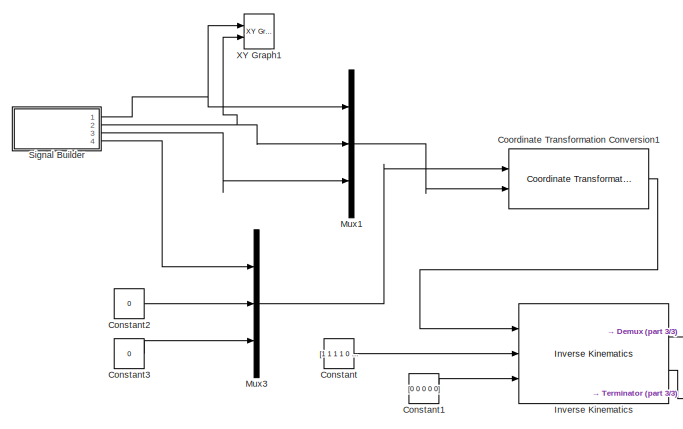
[diagram: root canvas - part 1/3, top left region]
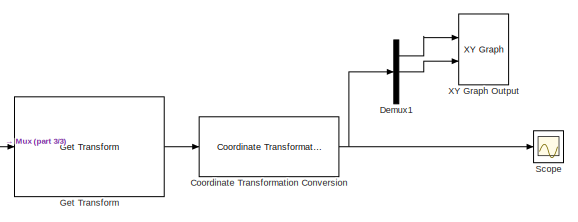
[diagram: root canvas - part 2/3, middle right region]
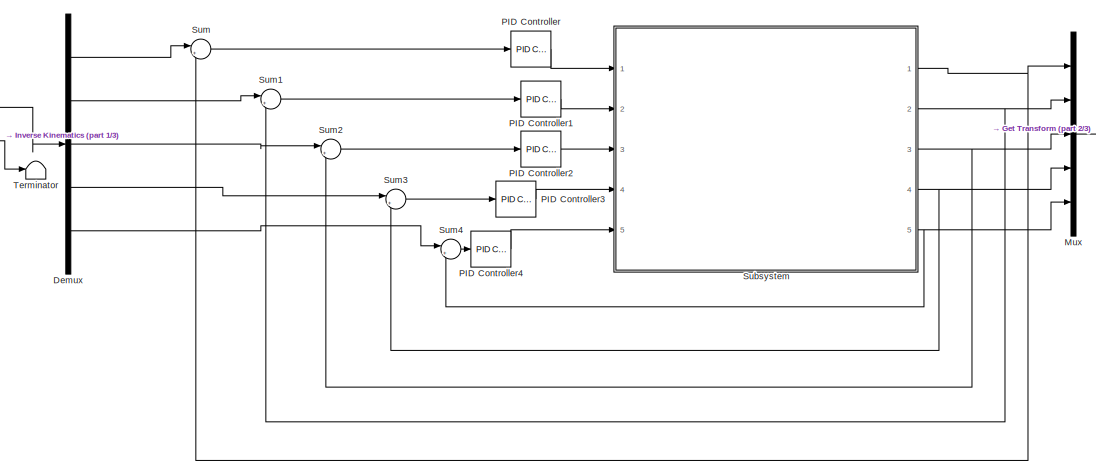
[diagram: root canvas - part 3/3, central region]
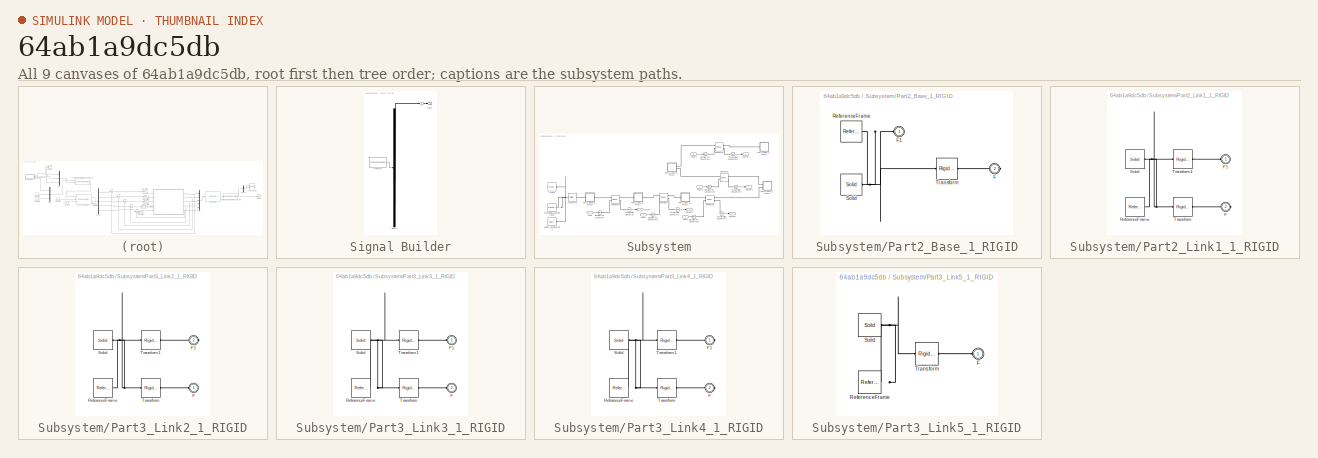
[diagram: thumbnail index - all 9 canvases of the model, root first then tree order]
MODEL slx_64ab1a9dc5db
KIND model
CONFIG AbsTol = auto
CONFIG EnableMultiTasking = off
CONFIG FixedStep = auto
CONFIG MaxStep = auto
CONFIG MinStep = auto
CONFIG RelTol = 1e-3
CONFIG SampleTimeConstraint = Unconstrained
CONFIG Solver = VariableStepAuto
CONFIG SolverName = VariableStepAuto
CONFIG StartTime = 0.0
CONFIG StopTime = 10.0
WORKSPACE source: external: MATLAB File  (data not in archive)
BLOCK [Constant] Constant
  Value = [1 1 1 1 0 0]
BLOCK [Constant] Constant1
  Value = [0 0 0 0 0]
BLOCK [Constant] Constant2
  Value = 0
BLOCK [Constant] Constant3
  Value = 0
BLOCK [Reference] Coordinate Transformation Conversion  REF=robotcorelib/Coordinate Transformation Conversion
  Ports = [1, 1]
  SourceBlock = robotcorelib/Coordinate Transformation Conversion
  SourceProductBaseCode = RO
  SourceProductName = Robotics System Toolbox
  SourceType = robotics.slcore.internal.block.CoordinateTransformationConversion
BLOCK [Reference] Coordinate Transformation Conversion1  REF=robotcorelib/Coordinate Transformation Conversion
  Ports = [2, 1]
  SourceBlock = robotcorelib/Coordinate Transformation Conversion
  SourceProductBaseCode = RO
  SourceProductName = Robotics System Toolbox
  SourceType = robotics.slcore.internal.block.CoordinateTransformationConversion
BLOCK [Demux] Demux
  DisplayOption = bar
  Outputs = 5
  Ports = [1, 5]
BLOCK [Demux] Demux1
  DisplayOption = bar
  Outputs = 3
  Ports = [1, 3]
BLOCK [Reference] Get Transform  REF=robotmaniplib/Get Transform
  Ports = [1, 1]
  SourceBlock = robotmaniplib/Get Transform
  SourceProductBaseCode = RO
  SourceProductName = Robotics System Toolbox
  SourceType = Get Transform
BLOCK [Reference] Inverse Kinematics  REF=robotmaniplib/Inverse Kinematics
  Ports = [3, 2]
  SourceBlock = robotmaniplib/Inverse Kinematics
  SourceProductBaseCode = RO
  SourceProductName = Robotics System Toolbox
  SourceType = Inverse Kinematics
BLOCK [Mux] Mux
  DisplayOption = bar
  Inputs = 5
  Ports = [5, 1]
BLOCK [Mux] Mux1
  DisplayOption = bar
  Inputs = 3
  Ports = [3, 1]
BLOCK [Mux] Mux3
  DisplayOption = bar
  Inputs = 3
  Ports = [3, 1]
BLOCK [Reference] PID Controller  REF=simulink/Continuous/PID Controller
  Ports = [1, 1]
  SourceBlock = simulink/Continuous/PID Controller
  SourceProductBaseCode = SL
  SourceProductName = Simulink
  SourceType = PID 1dof
BLOCK [Reference] PID Controller1  REF=simulink/Continuous/PID Controller
  Ports = [1, 1]
  SourceBlock = simulink/Continuous/PID Controller
  SourceProductBaseCode = SL
  SourceProductName = Simulink
  SourceType = PID 1dof
BLOCK [Reference] PID Controller2  REF=simulink/Continuous/PID Controller
  Ports = [1, 1]
  SourceBlock = simulink/Continuous/PID Controller
  SourceProductBaseCode = SL
  SourceProductName = Simulink
  SourceType = PID 1dof
BLOCK [Reference] PID Controller3  REF=simulink/Continuous/PID Controller
  Ports = [1, 1]
  SourceBlock = simulink/Continuous/PID Controller
  SourceProductBaseCode = SL
  SourceProductName = Simulink
  SourceType = PID 1dof
BLOCK [Reference] PID Controller4  REF=simulink/Continuous/PID Controller
  Ports = [1, 1]
  SourceBlock = simulink/Continuous/PID Controller
  SourceProductBaseCode = SL
  SourceProductName = Simulink
  SourceType = PID 1dof
BLOCK [Scope] Scope
  Floating = off
  NumInputPorts = 1
  Ports = [1]
  ScopeSpecificationString = Simulink.scopes.TimeScopeBlockCfg('CurrentConfiguration', extmgr.ConfigurationSet(extmgr.Configuration('Core','General UI',true),extmgr.Configuration('Core','Source UI',true),extmgr.Configuration('Sources','WiredSimulink',true),extmgr.Configuration('Visuals','Time Domain',true,'SerializedDisplays',{struct('MinYLimReal','-1.26989','MaxYLimReal','1.23812','YLabelReal','','MinYLimMag','0.00000','MaxY...<+1469ch>
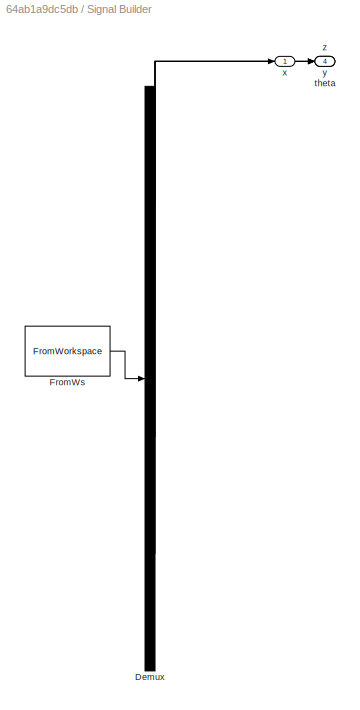
BLOCK [SubSystem] Signal Builder
  ClipboardFcn = sigbuilder_block('clipboard');
  CloseFcn = sigbuilder_block('close');
  ContinueFcn = sigbuilder_block('continue');
  CopyFcn = sigbuilder_block('copy');
  DeleteFcn = sigbuilder_block('delete');
  LoadFcn = sigbuilder_block('load');
  MaskHideContents = on
  ModelCloseFcn = sigbuilder_block('modelClose');
  NameChangeFcn = sigbuilder_block('namechange');
  OpenFcn = sigbuilder_block('open',[6 20.25 1012.5 447.75 ]);
  PauseFcn = sigbuilder_block('pause');
  Ports = [0, 4]
  PreSaveFcn = sigbuilder_block('preSave');
  RequestExecContextInheritance = off
  StartFcn = sigbuilder_block('start');
  StopFcn = sigbuilder_block('stop');
  Tag = STV Subsys
BLOCK [Demux] Signal Builder/Demux
  Ports = [1, 4]
  Tag = STV Demux
BLOCK [FromWorkspace] Signal Builder/FromWs
  SampleTime = 0
  Tag = STV FromWs
  VariableName = tuvar
  ZeroCross = on
BLOCK [Outport] Signal Builder/theta
  IconDisplay = Port number
  Port = 4
  Tag = STV Outport
BLOCK [Outport] Signal Builder/x
  IconDisplay = Port number
  Tag = STV Outport
BLOCK [Outport] Signal Builder/y
  IconDisplay = Port number
  Port = 2
  Tag = STV Outport
BLOCK [Outport] Signal Builder/z
  IconDisplay = Port number
  Port = 3
  Tag = STV Outport
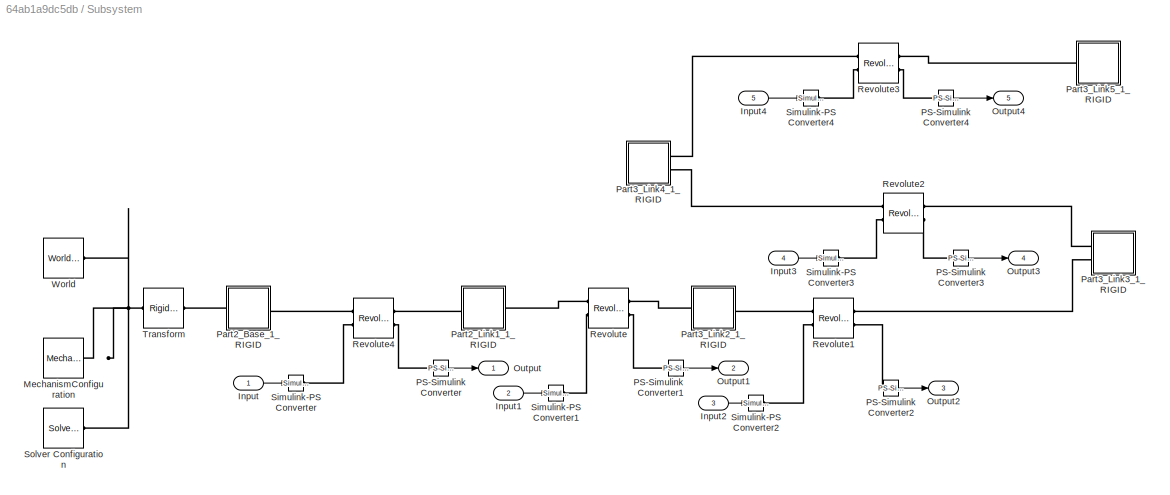
BLOCK [SubSystem] Subsystem
  Ports = [5, 5]
  RequestExecContextInheritance = off
BLOCK [Inport] Subsystem/Input
  IconDisplay = Port number
BLOCK [Inport] Subsystem/Input1
  IconDisplay = Port number
  Port = 2
BLOCK [Inport] Subsystem/Input2
  IconDisplay = Port number
  Port = 3
BLOCK [Inport] Subsystem/Input3
  IconDisplay = Port number
  Port = 4
BLOCK [Inport] Subsystem/Input4
  IconDisplay = Port number
  Port = 5
BLOCK [Reference] Subsystem/MechanismConfiguration  REF=sm_lib/Utilities/Mechanism
Configuration
  Ports = [0, 0, 0, 0, 0, 0, 1]
  SourceBlock = sm_lib/Utilities/Mechanism\nConfiguration
  SourceProductBaseCode = MS
  SourceProductName = Simscape Multibody
  SourceType = Mechanism\nConfiguration
BLOCK [Outport] Subsystem/Output
  IconDisplay = Port number
BLOCK [Outport] Subsystem/Output1
  IconDisplay = Port number
  Port = 2
BLOCK [Outport] Subsystem/Output2
  IconDisplay = Port number
  Port = 3
BLOCK [Outport] Subsystem/Output3
  IconDisplay = Port number
  Port = 4
BLOCK [Outport] Subsystem/Output4
  IconDisplay = Port number
  Port = 5
BLOCK [Reference] Subsystem/PS-Simulink Converter  REF=nesl_utility/PS-Simulink
Converter
  Ports = [0, 1, 0, 0, 0, 1]
  SourceBlock = nesl_utility/PS-Simulink\nConverter
  SourceProductBaseCode = SS
  SourceProductName = Simscape
  SourceType = PS-Simulink\nConverter
BLOCK [Reference] Subsystem/PS-Simulink Converter1  REF=nesl_utility/PS-Simulink
Converter
  Ports = [0, 1, 0, 0, 0, 1]
  SourceBlock = nesl_utility/PS-Simulink\nConverter
  SourceProductBaseCode = SS
  SourceProductName = Simscape
  SourceType = PS-Simulink\nConverter
BLOCK [Reference] Subsystem/PS-Simulink Converter2  REF=nesl_utility/PS-Simulink
Converter
  Ports = [0, 1, 0, 0, 0, 1]
  SourceBlock = nesl_utility/PS-Simulink\nConverter
  SourceProductBaseCode = SS
  SourceProductName = Simscape
  SourceType = PS-Simulink\nConverter
BLOCK [Reference] Subsystem/PS-Simulink Converter3  REF=nesl_utility/PS-Simulink
Converter
  Ports = [0, 1, 0, 0, 0, 1]
  SourceBlock = nesl_utility/PS-Simulink\nConverter
  SourceProductBaseCode = SS
  SourceProductName = Simscape
  SourceType = PS-Simulink\nConverter
BLOCK [Reference] Subsystem/PS-Simulink Converter4  REF=nesl_utility/PS-Simulink
Converter
  Ports = [0, 1, 0, 0, 0, 1]
  SourceBlock = nesl_utility/PS-Simulink\nConverter
  SourceProductBaseCode = SS
  SourceProductName = Simscape
  SourceType = PS-Simulink\nConverter
BLOCK [SubSystem] Subsystem/Part2_Base_1_RIGID
  Ports = [0, 0, 0, 0, 0, 1, 1]
  RequestExecContextInheritance = off
BLOCK [PMIOPort] Subsystem/Part2_Base_1_RIGID/F
  Port = 2
  Side = Right
BLOCK [PMIOPort] Subsystem/Part2_Base_1_RIGID/F1
  Side = Left
BLOCK [Reference] Subsystem/Part2_Base_1_RIGID/ReferenceFrame  REF=sm_lib/Frames and
Transforms/Reference
Frame
  Ports = [0, 0, 0, 0, 0, 0, 1]
  SourceBlock = sm_lib/Frames and\nTransforms/Reference\nFrame
  SourceProductBaseCode = MS
  SourceProductName = Simscape Multibody
  SourceType = Reference\nFrame
BLOCK [Reference] Subsystem/Part2_Base_1_RIGID/Solid  REF=sm_lib/Body Elements/Solid
  Ports = [0, 0, 0, 0, 0, 0, 1]
  SourceBlock = sm_lib/Body Elements/Solid
  SourceProductBaseCode = MS
  SourceProductName = Simscape Multibody
  SourceType = Solid
BLOCK [Reference] Subsystem/Part2_Base_1_RIGID/Transform  REF=sm_lib/Frames and
Transforms/Rigid
Transform
  Ports = [0, 0, 0, 0, 0, 1, 1]
  SourceBlock = sm_lib/Frames and\nTransforms/Rigid\nTransform
  SourceProductBaseCode = MS
  SourceProductName = Simscape Multibody
  SourceType = Rigid\nTransform
BLOCK [SubSystem] Subsystem/Part2_Link1_1_RIGID
  Ports = [0, 0, 0, 0, 0, 1, 1]
  RequestExecContextInheritance = off
BLOCK [PMIOPort] Subsystem/Part2_Link1_1_RIGID/F
  Port = 2
  Side = Right
BLOCK [PMIOPort] Subsystem/Part2_Link1_1_RIGID/F1
  Side = Left
BLOCK [Reference] Subsystem/Part2_Link1_1_RIGID/ReferenceFrame  REF=sm_lib/Frames and
Transforms/Reference
Frame
  Ports = [0, 0, 0, 0, 0, 0, 1]
  SourceBlock = sm_lib/Frames and\nTransforms/Reference\nFrame
  SourceProductBaseCode = MS
  SourceProductName = Simscape Multibody
  SourceType = Reference\nFrame
BLOCK [Reference] Subsystem/Part2_Link1_1_RIGID/Solid  REF=sm_lib/Body Elements/Solid
  Ports = [0, 0, 0, 0, 0, 0, 1]
  SourceBlock = sm_lib/Body Elements/Solid
  SourceProductBaseCode = MS
  SourceProductName = Simscape Multibody
  SourceType = Solid
BLOCK [Reference] Subsystem/Part2_Link1_1_RIGID/Transform  REF=sm_lib/Frames and
Transforms/Rigid
Transform
  Ports = [0, 0, 0, 0, 0, 1, 1]
  SourceBlock = sm_lib/Frames and\nTransforms/Rigid\nTransform
  SourceProductBaseCode = MS
  SourceProductName = Simscape Multibody
  SourceType = Rigid\nTransform
BLOCK [Reference] Subsystem/Part2_Link1_1_RIGID/Transform1  REF=sm_lib/Frames and
Transforms/Rigid
Transform
  Ports = [0, 0, 0, 0, 0, 1, 1]
  SourceBlock = sm_lib/Frames and\nTransforms/Rigid\nTransform
  SourceProductBaseCode = MS
  SourceProductName = Simscape Multibody
  SourceType = Rigid\nTransform
BLOCK [SubSystem] Subsystem/Part3_Link2_1_RIGID
  Ports = [0, 0, 0, 0, 0, 1, 1]
  RequestExecContextInheritance = off
BLOCK [PMIOPort] Subsystem/Part3_Link2_1_RIGID/F
  Side = Left
BLOCK [PMIOPort] Subsystem/Part3_Link2_1_RIGID/F1
  Port = 2
  Side = Right
BLOCK [Reference] Subsystem/Part3_Link2_1_RIGID/ReferenceFrame  REF=sm_lib/Frames and
Transforms/Reference
Frame
  Ports = [0, 0, 0, 0, 0, 0, 1]
  SourceBlock = sm_lib/Frames and\nTransforms/Reference\nFrame
  SourceProductBaseCode = MS
  SourceProductName = Simscape Multibody
  SourceType = Reference\nFrame
BLOCK [Reference] Subsystem/Part3_Link2_1_RIGID/Solid  REF=sm_lib/Body Elements/Solid
  Ports = [0, 0, 0, 0, 0, 0, 1]
  SourceBlock = sm_lib/Body Elements/Solid
  SourceProductBaseCode = MS
  SourceProductName = Simscape Multibody
  SourceType = Solid
BLOCK [Reference] Subsystem/Part3_Link2_1_RIGID/Transform  REF=sm_lib/Frames and
Transforms/Rigid
Transform
  Ports = [0, 0, 0, 0, 0, 1, 1]
  SourceBlock = sm_lib/Frames and\nTransforms/Rigid\nTransform
  SourceProductBaseCode = MS
  SourceProductName = Simscape Multibody
  SourceType = Rigid\nTransform
BLOCK [Reference] Subsystem/Part3_Link2_1_RIGID/Transform1  REF=sm_lib/Frames and
Transforms/Rigid
Transform
  Ports = [0, 0, 0, 0, 0, 1, 1]
  SourceBlock = sm_lib/Frames and\nTransforms/Rigid\nTransform
  SourceProductBaseCode = MS
  SourceProductName = Simscape Multibody
  SourceType = Rigid\nTransform
BLOCK [SubSystem] Subsystem/Part3_Link3_1_RIGID
  Ports = [0, 0, 0, 0, 0, 2]
  RequestExecContextInheritance = off
BLOCK [PMIOPort] Subsystem/Part3_Link3_1_RIGID/F
  Port = 2
  Side = Left
BLOCK [PMIOPort] Subsystem/Part3_Link3_1_RIGID/F1
  Side = Left
BLOCK [Reference] Subsystem/Part3_Link3_1_RIGID/ReferenceFrame  REF=sm_lib/Frames and
Transforms/Reference
Frame
  Ports = [0, 0, 0, 0, 0, 0, 1]
  SourceBlock = sm_lib/Frames and\nTransforms/Reference\nFrame
  SourceProductBaseCode = MS
  SourceProductName = Simscape Multibody
  SourceType = Reference\nFrame
BLOCK [Reference] Subsystem/Part3_Link3_1_RIGID/Solid  REF=sm_lib/Body Elements/Solid
  Ports = [0, 0, 0, 0, 0, 0, 1]
  SourceBlock = sm_lib/Body Elements/Solid
  SourceProductBaseCode = MS
  SourceProductName = Simscape Multibody
  SourceType = Solid
BLOCK [Reference] Subsystem/Part3_Link3_1_RIGID/Transform  REF=sm_lib/Frames and
Transforms/Rigid
Transform
  Ports = [0, 0, 0, 0, 0, 1, 1]
  SourceBlock = sm_lib/Frames and\nTransforms/Rigid\nTransform
  SourceProductBaseCode = MS
  SourceProductName = Simscape Multibody
  SourceType = Rigid\nTransform
BLOCK [Reference] Subsystem/Part3_Link3_1_RIGID/Transform1  REF=sm_lib/Frames and
Transforms/Rigid
Transform
  Ports = [0, 0, 0, 0, 0, 1, 1]
  SourceBlock = sm_lib/Frames and\nTransforms/Rigid\nTransform
  SourceProductBaseCode = MS
  SourceProductName = Simscape Multibody
  SourceType = Rigid\nTransform
BLOCK [SubSystem] Subsystem/Part3_Link4_1_RIGID
  Ports = [0, 0, 0, 0, 0, 0, 2]
  RequestExecContextInheritance = off
BLOCK [PMIOPort] Subsystem/Part3_Link4_1_RIGID/F
  Port = 2
  Side = Right
BLOCK [PMIOPort] Subsystem/Part3_Link4_1_RIGID/F1
  Side = Right
BLOCK [Reference] Subsystem/Part3_Link4_1_RIGID/ReferenceFrame  REF=sm_lib/Frames and
Transforms/Reference
Frame
  Ports = [0, 0, 0, 0, 0, 0, 1]
  SourceBlock = sm_lib/Frames and\nTransforms/Reference\nFrame
  SourceProductBaseCode = MS
  SourceProductName = Simscape Multibody
  SourceType = Reference\nFrame
BLOCK [Reference] Subsystem/Part3_Link4_1_RIGID/Solid  REF=sm_lib/Body Elements/Solid
  Ports = [0, 0, 0, 0, 0, 0, 1]
  SourceBlock = sm_lib/Body Elements/Solid
  SourceProductBaseCode = MS
  SourceProductName = Simscape Multibody
  SourceType = Solid
BLOCK [Reference] Subsystem/Part3_Link4_1_RIGID/Transform  REF=sm_lib/Frames and
Transforms/Rigid
Transform
  Ports = [0, 0, 0, 0, 0, 1, 1]
  SourceBlock = sm_lib/Frames and\nTransforms/Rigid\nTransform
  SourceProductBaseCode = MS
  SourceProductName = Simscape Multibody
  SourceType = Rigid\nTransform
BLOCK [Reference] Subsystem/Part3_Link4_1_RIGID/Transform1  REF=sm_lib/Frames and
Transforms/Rigid
Transform
  Ports = [0, 0, 0, 0, 0, 1, 1]
  SourceBlock = sm_lib/Frames and\nTransforms/Rigid\nTransform
  SourceProductBaseCode = MS
  SourceProductName = Simscape Multibody
  SourceType = Rigid\nTransform
BLOCK [SubSystem] Subsystem/Part3_Link5_1_RIGID
  Ports = [0, 0, 0, 0, 0, 1]
  RequestExecContextInheritance = off
BLOCK [PMIOPort] Subsystem/Part3_Link5_1_RIGID/F
  Side = Left
BLOCK [Reference] Subsystem/Part3_Link5_1_RIGID/ReferenceFrame  REF=sm_lib/Frames and
Transforms/Reference
Frame
  Ports = [0, 0, 0, 0, 0, 0, 1]
  SourceBlock = sm_lib/Frames and\nTransforms/Reference\nFrame
  SourceProductBaseCode = MS
  SourceProductName = Simscape Multibody
  SourceType = Reference\nFrame
BLOCK [Reference] Subsystem/Part3_Link5_1_RIGID/Solid  REF=sm_lib/Body Elements/Solid
  Ports = [0, 0, 0, 0, 0, 0, 1]
  SourceBlock = sm_lib/Body Elements/Solid
  SourceProductBaseCode = MS
  SourceProductName = Simscape Multibody
  SourceType = Solid
BLOCK [Reference] Subsystem/Part3_Link5_1_RIGID/Transform  REF=sm_lib/Frames and
Transforms/Rigid
Transform
  Ports = [0, 0, 0, 0, 0, 1, 1]
  SourceBlock = sm_lib/Frames and\nTransforms/Rigid\nTransform
  SourceProductBaseCode = MS
  SourceProductName = Simscape Multibody
  SourceType = Rigid\nTransform
BLOCK [Reference] Subsystem/Revolute  REF=sm_lib/Joints/Revolute Joint
  Ports = [0, 0, 0, 0, 0, 2, 2]
  SourceBlock = sm_lib/Joints/Revolute Joint
  SourceProductBaseCode = MS
  SourceProductName = Simscape Multibody
  SourceType = Revolute Joint
BLOCK [Reference] Subsystem/Revolute1  REF=sm_lib/Joints/Revolute Joint
  Ports = [0, 0, 0, 0, 0, 2, 2]
  SourceBlock = sm_lib/Joints/Revolute Joint
  SourceProductBaseCode = MS
  SourceProductName = Simscape Multibody
  SourceType = Revolute Joint
BLOCK [Reference] Subsystem/Revolute2  REF=sm_lib/Joints/Revolute Joint
  Ports = [0, 0, 0, 0, 0, 2, 2]
  SourceBlock = sm_lib/Joints/Revolute Joint
  SourceProductBaseCode = MS
  SourceProductName = Simscape Multibody
  SourceType = Revolute Joint
BLOCK [Reference] Subsystem/Revolute3  REF=sm_lib/Joints/Revolute Joint
  Ports = [0, 0, 0, 0, 0, 2, 2]
  SourceBlock = sm_lib/Joints/Revolute Joint
  SourceProductBaseCode = MS
  SourceProductName = Simscape Multibody
  SourceType = Revolute Joint
BLOCK [Reference] Subsystem/Revolute4  REF=sm_lib/Joints/Revolute Joint
  Ports = [0, 0, 0, 0, 0, 2, 2]
  SourceBlock = sm_lib/Joints/Revolute Joint
  SourceProductBaseCode = MS
  SourceProductName = Simscape Multibody
  SourceType = Revolute Joint
BLOCK [Reference] Subsystem/Simulink-PS Converter  REF=nesl_utility/Simulink-PS
Converter
  Ports = [1, 0, 0, 0, 0, 0, 1]
  SourceBlock = nesl_utility/Simulink-PS\nConverter
  SourceProductBaseCode = SS
  SourceProductName = Simscape
  SourceType = Simulink-PS\nConverter
BLOCK [Reference] Subsystem/Simulink-PS Converter1  REF=nesl_utility/Simulink-PS
Converter
  Ports = [1, 0, 0, 0, 0, 0, 1]
  SourceBlock = nesl_utility/Simulink-PS\nConverter
  SourceProductBaseCode = SS
  SourceProductName = Simscape
  SourceType = Simulink-PS\nConverter
BLOCK [Reference] Subsystem/Simulink-PS Converter2  REF=nesl_utility/Simulink-PS
Converter
  Ports = [1, 0, 0, 0, 0, 0, 1]
  SourceBlock = nesl_utility/Simulink-PS\nConverter
  SourceProductBaseCode = SS
  SourceProductName = Simscape
  SourceType = Simulink-PS\nConverter
BLOCK [Reference] Subsystem/Simulink-PS Converter3  REF=nesl_utility/Simulink-PS
Converter
  Ports = [1, 0, 0, 0, 0, 0, 1]
  SourceBlock = nesl_utility/Simulink-PS\nConverter
  SourceProductBaseCode = SS
  SourceProductName = Simscape
  SourceType = Simulink-PS\nConverter
BLOCK [Reference] Subsystem/Simulink-PS Converter4  REF=nesl_utility/Simulink-PS
Converter
  Ports = [1, 0, 0, 0, 0, 0, 1]
  SourceBlock = nesl_utility/Simulink-PS\nConverter
  SourceProductBaseCode = SS
  SourceProductName = Simscape
  SourceType = Simulink-PS\nConverter
BLOCK [Reference] Subsystem/Solver Configuration  REF=nesl_utility/Solver
Configuration
  Ports = [0, 0, 0, 0, 0, 0, 1]
  SourceBlock = nesl_utility/Solver\nConfiguration
  SourceProductBaseCode = SS
  SourceProductName = Simscape
  SourceType = Solver\nConfiguration
BLOCK [Reference] Subsystem/Transform  REF=sm_lib/Frames and
Transforms/Rigid
Transform
  Ports = [0, 0, 0, 0, 0, 1, 1]
  SourceBlock = sm_lib/Frames and\nTransforms/Rigid\nTransform
  SourceProductBaseCode = MS
  SourceProductName = Simscape Multibody
  SourceType = Rigid\nTransform
BLOCK [Reference] Subsystem/World  REF=sm_lib/Frames and
Transforms/World Frame
  Ports = [0, 0, 0, 0, 0, 0, 1]
  SourceBlock = sm_lib/Frames and\nTransforms/World Frame
  SourceProductBaseCode = MS
  SourceProductName = Simscape Multibody
  SourceType = World Frame
BLOCK [Sum] Sum
  IconShape = round
  InputSameDT = off
  Inputs = |+-
  OutDataTypeStr = Inherit: Inherit via internal rule
  Ports = [2, 1]
  SaturateOnIntegerOverflow = off
BLOCK [Sum] Sum1
  IconShape = round
  InputSameDT = off
  Inputs = |+-
  OutDataTypeStr = Inherit: Inherit via internal rule
  Ports = [2, 1]
  SaturateOnIntegerOverflow = off
BLOCK [Sum] Sum2
  IconShape = round
  InputSameDT = off
  Inputs = |+-
  OutDataTypeStr = Inherit: Inherit via internal rule
  Ports = [2, 1]
  SaturateOnIntegerOverflow = off
BLOCK [Sum] Sum3
  IconShape = round
  InputSameDT = off
  Inputs = |+-
  OutDataTypeStr = Inherit: Inherit via internal rule
  Ports = [2, 1]
  SaturateOnIntegerOverflow = off
BLOCK [Sum] Sum4
  IconShape = round
  InputSameDT = off
  Inputs = |+-
  OutDataTypeStr = Inherit: Inherit via internal rule
  Ports = [2, 1]
  SaturateOnIntegerOverflow = off
BLOCK [Terminator] Terminator
BLOCK [Reference] XY Graph Output  REF=simulink/Sinks/XY Graph
  Ports = [2]
  SourceBlock = simulink/Sinks/XY Graph
  SourceProductBaseCode = SL
  SourceProductName = Simulink
  SourceType = XY scope.
BLOCK [Reference] XY Graph1  REF=simulink/Sinks/XY Graph
  Ports = [2]
  SourceBlock = simulink/Sinks/XY Graph
  SourceProductBaseCode = SL
  SourceProductName = Simulink
  SourceType = XY scope.
LINE Constant1:1 -> Inverse Kinematics:3
LINE Constant2:1 -> Mux3:2
LINE Constant3:1 -> Mux3:3
LINE Constant:1 -> Inverse Kinematics:2
LINE Coordinate Transformation Conversion1:1 -> Inverse Kinematics:1
NET Coordinate Transformation Conversion:1 -> Demux1:1, Scope:1
LINE Demux1:1 -> XY Graph Output:1
LINE Demux1:2 -> XY Graph Output:2
LINE Demux:1 -> Sum:1
LINE Demux:2 -> Sum1:1
LINE Demux:3 -> Sum2:1
LINE Demux:4 -> Sum3:1
LINE Demux:5 -> Sum4:1
LINE Get Transform:1 -> Coordinate Transformation Conversion:1
LINE Inverse Kinematics:1 -> Demux:1
LINE Inverse Kinematics:2 -> Terminator:1
LINE Mux1:1 -> Coordinate Transformation Conversion1:2
LINE Mux3:1 -> Coordinate Transformation Conversion1:1
LINE Mux:1 -> Get Transform:1
LINE PID Controller1:1 -> Subsystem:2
LINE PID Controller2:1 -> Subsystem:3
LINE PID Controller3:1 -> Subsystem:4
LINE PID Controller4:1 -> Subsystem:5
LINE PID Controller:1 -> Subsystem:1
NET Signal Builder:1 -> Mux1:1, XY Graph1:1
NET Signal Builder:2 -> Mux1:2, XY Graph1:2
LINE Signal Builder:3 -> Mux1:3
LINE Signal Builder:4 -> Mux3:1
LINE Subsystem/Input1:1 -> Subsystem/Simulink-PS Converter1:1
LINE Subsystem/Input2:1 -> Subsystem/Simulink-PS Converter2:1
LINE Subsystem/Input3:1 -> Subsystem/Simulink-PS Converter3:1
LINE Subsystem/Input4:1 -> Subsystem/Simulink-PS Converter4:1
LINE Subsystem/Input:1 -> Subsystem/Simulink-PS Converter:1
LINE Subsystem/PS-Simulink Converter1:1 -> Subsystem/Output1:1
LINE Subsystem/PS-Simulink Converter2:1 -> Subsystem/Output2:1
LINE Subsystem/PS-Simulink Converter3:1 -> Subsystem/Output3:1
LINE Subsystem/PS-Simulink Converter4:1 -> Subsystem/Output4:1
LINE Subsystem/PS-Simulink Converter:1 -> Subsystem/Output:1
NET Subsystem:1 -> Mux:1, Sum:2
NET Subsystem:2 -> Mux:2, Sum1:2
NET Subsystem:3 -> Mux:3, Sum2:2
NET Subsystem:4 -> Mux:4, Sum3:2
NET Subsystem:5 -> Mux:5, Sum4:2
LINE Sum1:1 -> PID Controller1:1
LINE Sum2:1 -> PID Controller2:1
LINE Sum3:1 -> PID Controller3:1
LINE Sum4:1 -> PID Controller4:1
LINE Sum:1 -> PID Controller:1
PNET net1: Subsystem/MechanismConfiguration:RConn1 -- Subsystem/Solver Configuration:RConn1 -- Subsystem/Transform:LConn1 -- Subsystem/World:RConn1
PLINE Subsystem/PS-Simulink Converter1:LConn1 -- Subsystem/Revolute:RConn2
PLINE Subsystem/PS-Simulink Converter2:LConn1 -- Subsystem/Revolute1:RConn2
PLINE Subsystem/PS-Simulink Converter3:LConn1 -- Subsystem/Revolute2:RConn2
PLINE Subsystem/PS-Simulink Converter4:LConn1 -- Subsystem/Revolute3:RConn2
PLINE Subsystem/PS-Simulink Converter:LConn1 -- Subsystem/Revolute4:RConn2
PNET net2: Subsystem/Part2_Base_1_RIGID/F1:RConn1 -- Subsystem/Part2_Base_1_RIGID/ReferenceFrame:RConn1 -- Subsystem/Part2_Base_1_RIGID/Solid:RConn1 -- Subsystem/Part2_Base_1_RIGID/Transform:LConn1
PLINE Subsystem/Part2_Base_1_RIGID/F:RConn1 -- Subsystem/Part2_Base_1_RIGID/Transform:RConn1
PLINE Subsystem/Part2_Base_1_RIGID:LConn1 -- Subsystem/Transform:RConn1
PLINE Subsystem/Part2_Base_1_RIGID:RConn1 -- Subsystem/Revolute4:LConn1
PLINE Subsystem/Part2_Link1_1_RIGID/F1:RConn1 -- Subsystem/Part2_Link1_1_RIGID/Transform1:RConn1
PLINE Subsystem/Part2_Link1_1_RIGID/F:RConn1 -- Subsystem/Part2_Link1_1_RIGID/Transform:RConn1
PNET net3: Subsystem/Part2_Link1_1_RIGID/ReferenceFrame:RConn1 -- Subsystem/Part2_Link1_1_RIGID/Solid:RConn1 -- Subsystem/Part2_Link1_1_RIGID/Transform1:LConn1 -- Subsystem/Part2_Link1_1_RIGID/Transform:LConn1
PLINE Subsystem/Part2_Link1_1_RIGID:LConn1 -- Subsystem/Revolute4:RConn1
PLINE Subsystem/Part2_Link1_1_RIGID:RConn1 -- Subsystem/Revolute:LConn1
PLINE Subsystem/Part3_Link2_1_RIGID/F1:RConn1 -- Subsystem/Part3_Link2_1_RIGID/Transform1:RConn1
PLINE Subsystem/Part3_Link2_1_RIGID/F:RConn1 -- Subsystem/Part3_Link2_1_RIGID/Transform:RConn1
PNET net4: Subsystem/Part3_Link2_1_RIGID/ReferenceFrame:RConn1 -- Subsystem/Part3_Link2_1_RIGID/Solid:RConn1 -- Subsystem/Part3_Link2_1_RIGID/Transform1:LConn1 -- Subsystem/Part3_Link2_1_RIGID/Transform:LConn1
PLINE Subsystem/Part3_Link2_1_RIGID:LConn1 -- Subsystem/Revolute:RConn1
PLINE Subsystem/Part3_Link2_1_RIGID:RConn1 -- Subsystem/Revolute1:LConn1
PLINE Subsystem/Part3_Link3_1_RIGID/F1:RConn1 -- Subsystem/Part3_Link3_1_RIGID/Transform1:RConn1
PLINE Subsystem/Part3_Link3_1_RIGID/F:RConn1 -- Subsystem/Part3_Link3_1_RIGID/Transform:RConn1
PNET net5: Subsystem/Part3_Link3_1_RIGID/ReferenceFrame:RConn1 -- Subsystem/Part3_Link3_1_RIGID/Solid:RConn1 -- Subsystem/Part3_Link3_1_RIGID/Transform1:LConn1 -- Subsystem/Part3_Link3_1_RIGID/Transform:LConn1
PLINE Subsystem/Part3_Link3_1_RIGID:LConn1 -- Subsystem/Revolute2:RConn1
PLINE Subsystem/Part3_Link3_1_RIGID:LConn2 -- Subsystem/Revolute1:RConn1
PLINE Subsystem/Part3_Link4_1_RIGID/F1:RConn1 -- Subsystem/Part3_Link4_1_RIGID/Transform1:RConn1
PLINE Subsystem/Part3_Link4_1_RIGID/F:RConn1 -- Subsystem/Part3_Link4_1_RIGID/Transform:RConn1
PNET net6: Subsystem/Part3_Link4_1_RIGID/ReferenceFrame:RConn1 -- Subsystem/Part3_Link4_1_RIGID/Solid:RConn1 -- Subsystem/Part3_Link4_1_RIGID/Transform1:LConn1 -- Subsystem/Part3_Link4_1_RIGID/Transform:LConn1
PLINE Subsystem/Part3_Link4_1_RIGID:RConn1 -- Subsystem/Revolute3:LConn1
PLINE Subsystem/Part3_Link4_1_RIGID:RConn2 -- Subsystem/Revolute2:LConn1
PLINE Subsystem/Part3_Link5_1_RIGID/F:RConn1 -- Subsystem/Part3_Link5_1_RIGID/Transform:RConn1
PNET net7: Subsystem/Part3_Link5_1_RIGID/ReferenceFrame:RConn1 -- Subsystem/Part3_Link5_1_RIGID/Solid:RConn1 -- Subsystem/Part3_Link5_1_RIGID/Transform:LConn1
PLINE Subsystem/Part3_Link5_1_RIGID:LConn1 -- Subsystem/Revolute3:RConn1
PLINE Subsystem/Revolute1:LConn2 -- Subsystem/Simulink-PS Converter2:RConn1
PLINE Subsystem/Revolute2:LConn2 -- Subsystem/Simulink-PS Converter3:RConn1
PLINE Subsystem/Revolute3:LConn2 -- Subsystem/Simulink-PS Converter4:RConn1
PLINE Subsystem/Revolute4:LConn2 -- Subsystem/Simulink-PS Converter:RConn1
PLINE Subsystem/Revolute:LConn2 -- Subsystem/Simulink-PS Converter1:RConn1
note: NET lines group one-source signal fan-out (src -> all destinations, sorted); 1:1 wires keep LINE; PNET lines group multi-terminal physical nets as a canonical sorted terminal list (undirected conserving connections); 2-terminal nets keep the pairwise PLINE form
